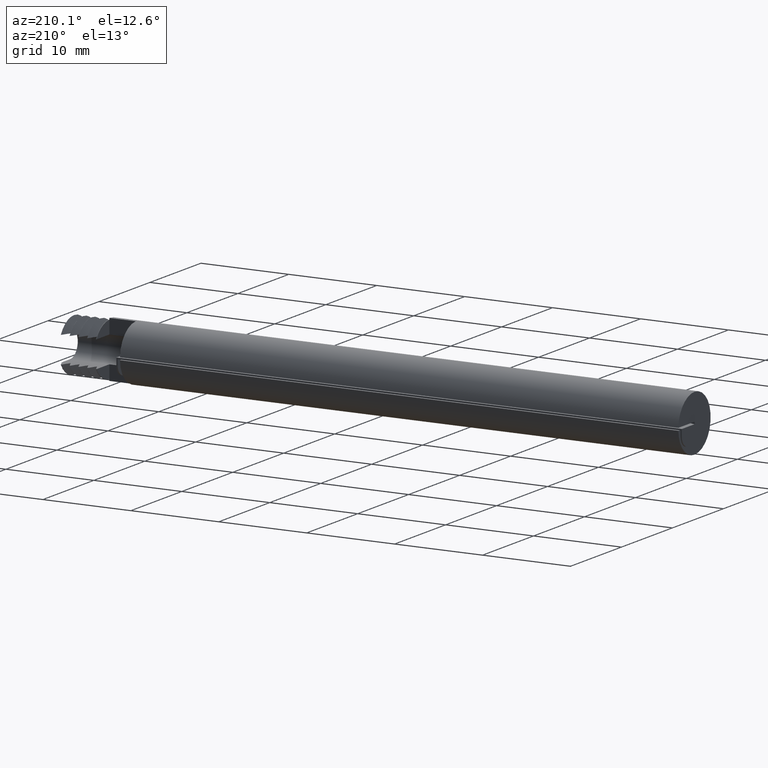
[diagram: clean part render]
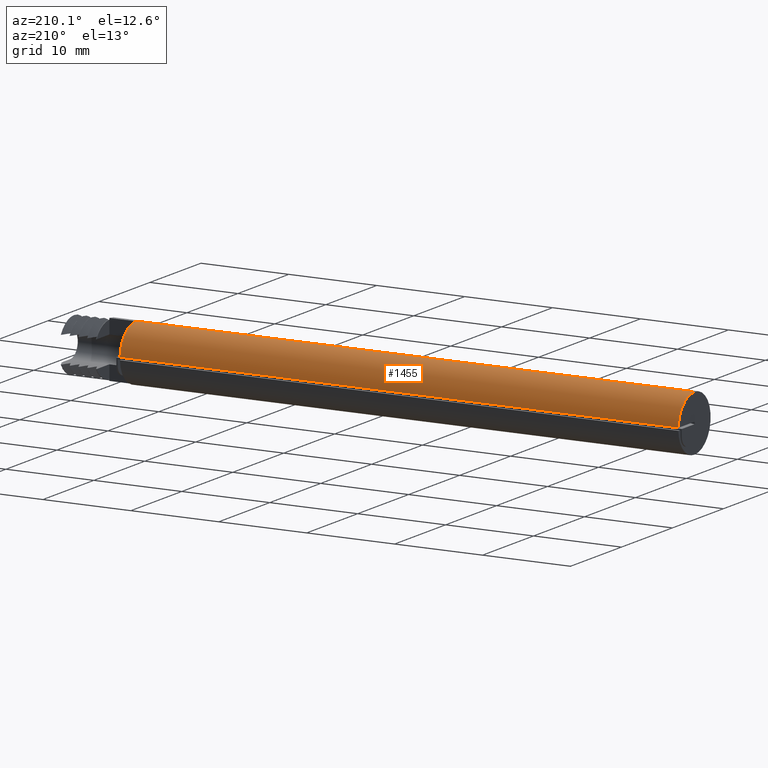
[diagram: same view with one face highlighted and labeled with its STEP entity id]
A machine part, auxiliary view. The second image highlights one B-rep face of the part: STEP entity #1455.
In plain terms, the highlighted cylindrical surface (edge-blend (fillet) strip) has radius 3.175 mm, axis along (-1, -0, -0).
Its self-contained STEP definition (entity closure, byte-faithful):
#9 = VECTOR ( 'NONE', #1594, 1000.000000000000000 ) ;
#29 = CARTESIAN_POINT ( 'NONE',  ( -37.75857759600091200, -2.271543834794374800, 0.1499999999999999900 ) ) ;
#121 = LINE ( 'NONE', #513, #1449 ) ;
#142 = FACE_OUTER_BOUND ( 'NONE', #2200, .T. ) ;
#382 = CARTESIAN_POINT ( 'NONE',  ( 25.74142240399909200, -2.271543834794374800, 0.1499999999999999900 ) ) ;
#405 = CARTESIAN_POINT ( 'NONE',  ( 25.74142240399909200, -5.367998548328842800, 3.174114049620775400 ) ) ;
#482 = DIRECTION ( 'NONE',  ( 0.0000000000000000000, 0.0000000000000000000, 1.000000000000000000 ) ) ;
#513 = CARTESIAN_POINT ( 'NONE',  ( -37.75857759600091200, -5.367998548328842800, 3.174114049620775400 ) ) ;
#528 = VECTOR ( 'NONE', #1038, 1000.000000000000000 ) ;
#540 = AXIS2_PLACEMENT_3D ( 'NONE', #953, #2173, #1681 ) ;
#541 = ORIENTED_EDGE ( 'NONE', *, *, #1503, .F. ) ;
#542 = ORIENTED_EDGE ( 'NONE', *, *, #1535, .F. ) ;
#557 = ORIENTED_EDGE ( 'NONE', *, *, #603, .T. ) ;
#565 = LINE ( 'NONE', #1366, #528 ) ;
#603 = EDGE_CURVE ( 'NONE', #1812, #1673, #121, .T. ) ;
#625 = VERTEX_POINT ( 'NONE', #1949 ) ;
#683 = CARTESIAN_POINT ( 'NONE',  ( -37.75857759600091200, -5.442998548328843000, 3.174999999999999800 ) ) ;
#817 = DIRECTION ( 'NONE',  ( 0.0000000000000000000, 0.0000000000000000000, 1.000000000000000000 ) ) ;
#823 = DIRECTION ( 'NONE',  ( -1.000000000000000000, -0.0000000000000000000, -0.0000000000000000000 ) ) ;
#851 = CARTESIAN_POINT ( 'NONE',  ( -37.75857759600091200, -5.442998548328843000, 0.0000000000000000000 ) ) ;
#895 = ORIENTED_EDGE ( 'NONE', *, *, #972, .T. ) ;
#908 = CIRCLE ( 'NONE', #1792, 3.174999999999999800 ) ;
#928 = CARTESIAN_POINT ( 'NONE',  ( -37.75857759600091200, -5.442998548328843000, 3.174999999999999800 ) ) ;
#953 = CARTESIAN_POINT ( 'NONE',  ( 28.74142240399909200, -5.442998548328843000, 0.0000000000000000000 ) ) ;
#972 = EDGE_CURVE ( 'NONE', #1673, #1102, #908, .T. ) ;
#989 = AXIS2_PLACEMENT_3D ( 'NONE', #851, #2068, #2270 ) ;
#1038 = DIRECTION ( 'NONE',  ( -1.000000000000000000, -0.0000000000000000000, -0.0000000000000000000 ) ) ;
#1072 = CIRCLE ( 'NONE', #540, 3.174999999999999800 ) ;
#1094 = EDGE_CURVE ( 'NONE', #625, #1650, #1674, .T. ) ;
#1102 = VERTEX_POINT ( 'NONE', #382 ) ;
#1201 = CARTESIAN_POINT ( 'NONE',  ( 25.74142240399909200, -5.442998548328843000, 0.0000000000000000000 ) ) ;
#1366 = CARTESIAN_POINT ( 'NONE',  ( -37.75857759600091200, -2.271543834794374800, 0.1499999999999999900 ) ) ;
#1449 = VECTOR ( 'NONE', #2339, 1000.000000000000000 ) ;
#1455 = ADVANCED_FACE ( 'NONE', ( #142 ), #2347, .T. ) ;
#1503 = EDGE_CURVE ( 'NONE', #1812, #625, #1072, .T. ) ;
#1535 = EDGE_CURVE ( 'NONE', #1650, #1691, #2192, .T. ) ;
#1594 = DIRECTION ( 'NONE',  ( -1.000000000000000000, -0.0000000000000000000, -0.0000000000000000000 ) ) ;
#1609 = ORIENTED_EDGE ( 'NONE', *, *, #1954, .T. ) ;
#1638 = CARTESIAN_POINT ( 'NONE',  ( -37.75857759600091200, -5.442998548328843000, 0.0000000000000000000 ) ) ;
#1650 = VERTEX_POINT ( 'NONE', #683 ) ;
#1673 = VERTEX_POINT ( 'NONE', #405 ) ;
#1674 = LINE ( 'NONE', #928, #9 ) ;
#1681 = DIRECTION ( 'NONE',  ( 0.0000000000000000000, 0.0000000000000000000, -1.000000000000000000 ) ) ;
#1690 = CARTESIAN_POINT ( 'NONE',  ( 28.74142240399909200, -5.367998548328842800, 3.174114049620775400 ) ) ;
#1691 = VERTEX_POINT ( 'NONE', #29 ) ;
#1716 = ORIENTED_EDGE ( 'NONE', *, *, #1094, .F. ) ;
#1792 = AXIS2_PLACEMENT_3D ( 'NONE', #1201, #823, #482 ) ;
#1812 = VERTEX_POINT ( 'NONE', #1690 ) ;
#1949 = CARTESIAN_POINT ( 'NONE',  ( 28.74142240399909200, -5.442998548328843000, 3.174999999999999800 ) ) ;
#1953 = AXIS2_PLACEMENT_3D ( 'NONE', #1638, #2241, #817 ) ;
#1954 = EDGE_CURVE ( 'NONE', #1102, #1691, #565, .T. ) ;
#2068 = DIRECTION ( 'NONE',  ( -1.000000000000000000, -0.0000000000000000000, -0.0000000000000000000 ) ) ;
#2173 = DIRECTION ( 'NONE',  ( 1.000000000000000000, 0.0000000000000000000, 0.0000000000000000000 ) ) ;
#2192 = CIRCLE ( 'NONE', #989, 3.174999999999999800 ) ;
#2200 = EDGE_LOOP ( 'NONE', ( #1716, #541, #557, #895, #1609, #542 ) ) ;
#2241 = DIRECTION ( 'NONE',  ( -1.000000000000000000, -0.0000000000000000000, -0.0000000000000000000 ) ) ;
#2270 = DIRECTION ( 'NONE',  ( 0.0000000000000000000, 0.0000000000000000000, 1.000000000000000000 ) ) ;
#2339 = DIRECTION ( 'NONE',  ( -1.000000000000000000, -0.0000000000000000000, -0.0000000000000000000 ) ) ;
#2347 = CYLINDRICAL_SURFACE ( 'NONE', #1953, 3.174999999999999800 ) ;